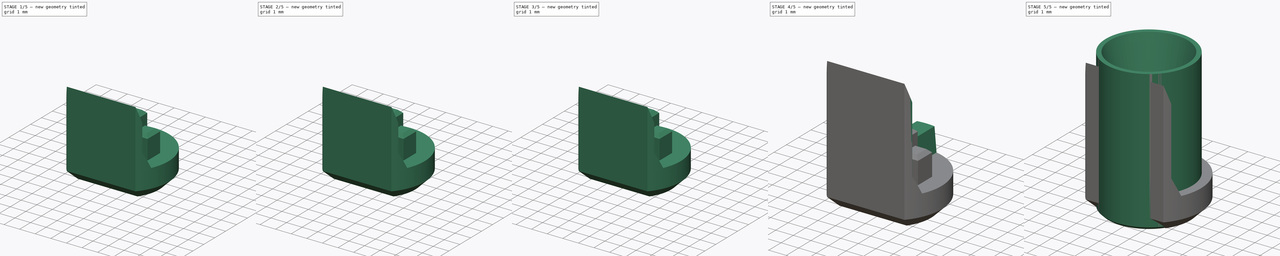
[diagram: build sequence overview — one tinted view per stage of 5, left to right]
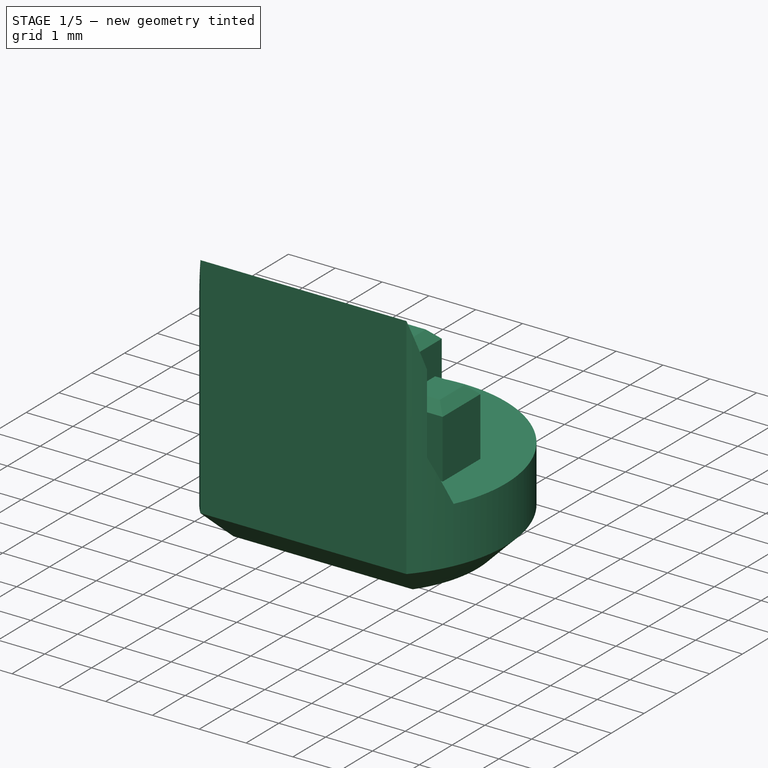
[diagram: stage 1 of 5 — iso view after this stage's code; geometry added in this stage tinted green]
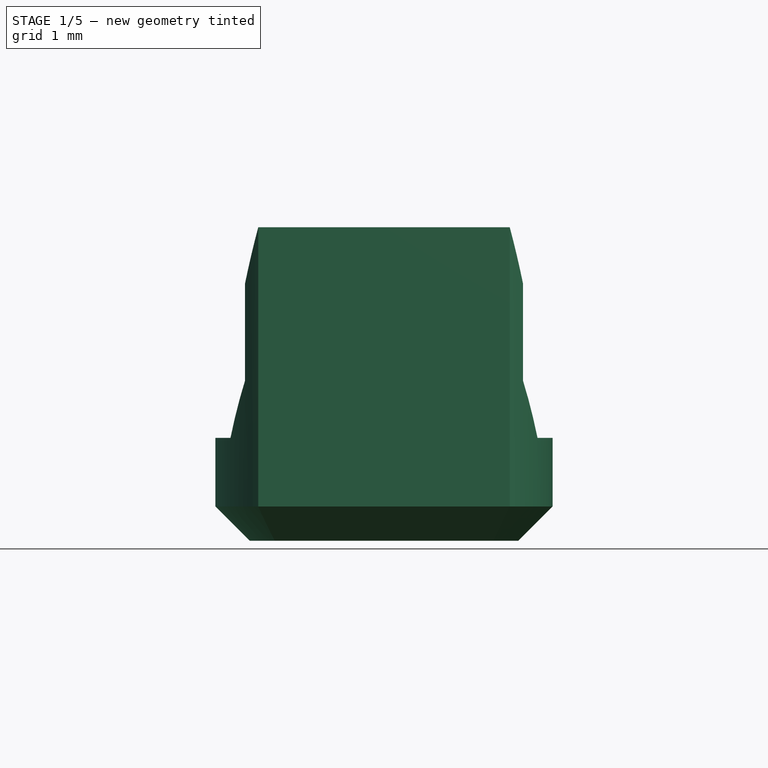
[diagram: stage 1 of 5 — front view after this stage's code; geometry added in this stage tinted green]
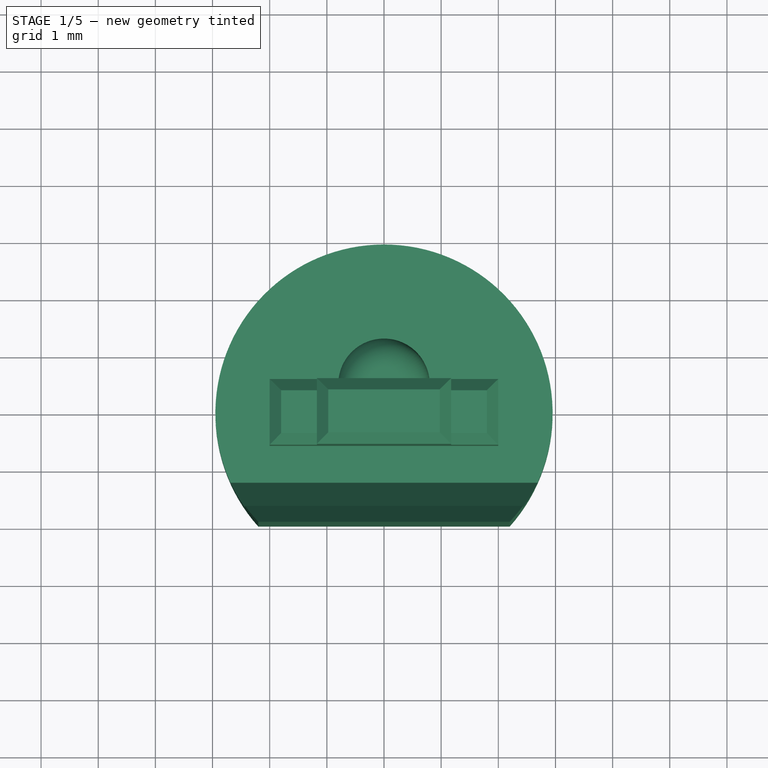
[diagram: stage 1 of 5 — top view after this stage's code; geometry added in this stage tinted green]
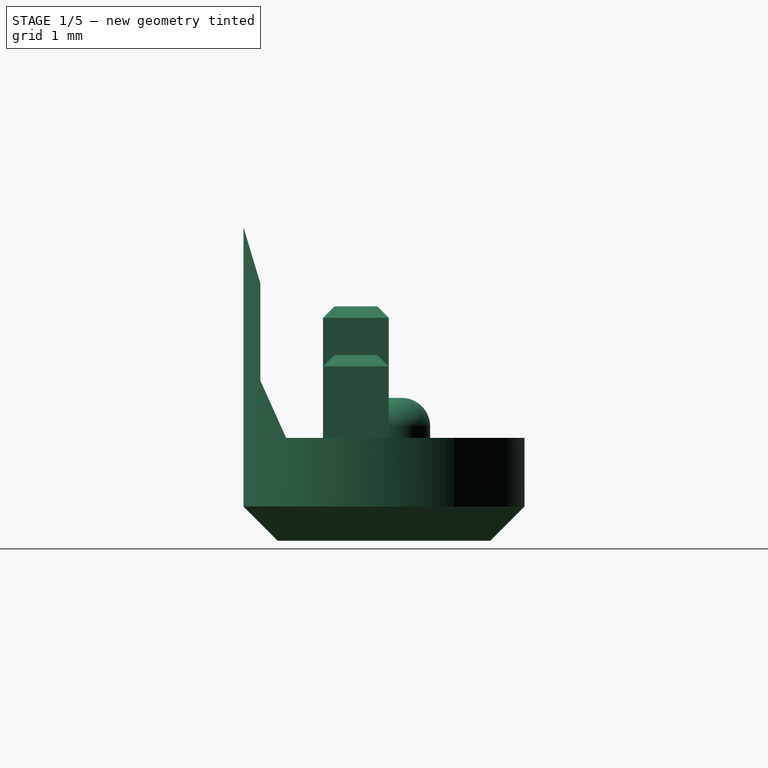
[diagram: stage 1 of 5 — right view after this stage's code; geometry added in this stage tinted green]
FCSTD DOCUMENT  (FreeCAD 0.21R33668 +26 (Git))
Label: universal_insert
License: All rights reserved
LicenseURL: http://en.wikipedia.org/wiki/All_rights_reserved
objects: PartDesign::Body×50, PartDesign::FeatureBase×45, Sketcher::SketchObject×12, PartDesign::Pad×6, PartDesign::Chamfer×5, PartDesign::Pocket×4, App::Part×3, PartDesign::Revolution×2, PartDesign::Draft×1, PartDesign::Fillet×1
note: 145 computed .brp shape members not serialized (recipe doc carries the construction recipe); baked Part::Feature solids carry a one-line shape summary decoded from their .brp

FEATURE [PartDesign::Body] Body  label="Potentiometer"
  Group = -> [Sketch,Pad,Sketch001,Sketch002,Pad001,Sketch003,Pocket,Pad002,Draft,Chamfer]
  Origin = -> Origin
  Tip = -> Chamfer
FEATURE [Sketcher::SketchObject] Sketch004
  FullyConstrained = true
  MapMode = 5
  Support = -> [XY_Plane001]
  sketch-geometry (2):
    g0: ArcOfCircle CenterX=0 CenterY=0 CenterZ=0 NormalX=0 NormalY=0 NormalZ=1 AngleXU=0 Radius=2.95 StartAngle=5.55407 EndAngle=10.1539
    g1: LineSegment StartX=-2.2 StartY=-1.96532 StartZ=0 EndX=2.2 EndY=-1.96532 EndZ=0
  constraints (6):
    c: Coincident(g0,g-1)
    c: Coincident(g1,g0)
    c: Coincident(g1,g0)
    c: Radius(g0) = 2.95
    c: DistanceX(g1,g1) = 4.4
    c: Horizontal(g1)
FEATURE [PartDesign::Pad] Pad003  label="Riser001"
  AllowMultiFace = false
  Direction = (0,0,1)
  Length = 5.5
  Length2 = 100
  Profile = -> Sketch004
  ReferenceAxis = -> Sketch004 [N_Axis]
  Refine = true
  Type = 0
FEATURE [Sketcher::SketchObject] Sketch008
  FullyConstrained = true
  MapMode = 5
  Support = -> [XY_Plane002]
  sketch-geometry (7):
    g0: LineSegment StartX=-2 StartY=0.575 StartZ=0 EndX=2 EndY=0.575 EndZ=0
    g1: LineSegment StartX=2 StartY=0.575 StartZ=0 EndX=2 EndY=-0.575 EndZ=0
    g2: LineSegment StartX=2 StartY=-0.575 StartZ=0 EndX=-2 EndY=-0.575 EndZ=0
    g3: LineSegment StartX=-2 StartY=-0.575 StartZ=0 EndX=-2 EndY=0.575 EndZ=0
    g4: LineSegment StartX=-2 StartY=0.575 StartZ=0 EndX=0 EndY=0 EndZ=0
    g5: LineSegment StartX=0 StartY=0 StartZ=0 EndX=2 EndY=0.575 EndZ=0
    g6: LineSegment StartX=0 StartY=0 StartZ=0 EndX=-2 EndY=-0.575 EndZ=0
  constraints (18):
    c: Coincident(g0,g1)
    c: Coincident(g1,g2)
    c: Coincident(g2,g3)
    c: Coincident(g3,g0)
    c: Horizontal(g0)
    c: Horizontal(g2)
    c: Vertical(g1)
    c: Vertical(g3)
    c: Coincident(g4,g0)
    c: Coincident(g4,g-1)
    c: Coincident(g5,g-1)
    c: Coincident(g5,g0)
    c: Coincident(g6,g-1)
    c: Coincident(g6,g2)
    c: Equal(g6,g4)
    c: Equal(g4,g5)
    c: DistanceX(g0,g0) = 4
    c: DistanceY(g1,g1) = 1.15
FEATURE [PartDesign::Pad] Pad005  label="Riser002"
  AllowMultiFace = false
  Direction = (1,1,1)
  Length = 4.1
  Length2 = 100
  Profile = -> Sketch008
  Refine = true
  Type = 0
FEATURE [Sketcher::SketchObject] Sketch009
  ExternalGeometry = -> [Pad005]
  FullyConstrained = true
  MapMode = 5
  Placement = pos=(0,0.575,0) rot=(0,0.707107,0.707107;3.14159rad)
  Support = -> [Pad005]
  sketch-geometry (8):
    g0: LineSegment StartX=-2 StartY=4.1 StartZ=0 EndX=-1.175 EndY=4.1 EndZ=0
    g1: LineSegment StartX=-1.175 StartY=4.1 StartZ=0 EndX=-1.175 EndY=3.25 EndZ=0
    g2: LineSegment StartX=-1.175 StartY=3.25 StartZ=0 EndX=-2 EndY=3.25 EndZ=0
    g3: LineSegment StartX=-2 StartY=3.25 StartZ=0 EndX=-2 EndY=4.1 EndZ=0
    g4: LineSegment StartX=2 StartY=4.1 StartZ=0 EndX=1.175 EndY=4.1 EndZ=0
    g5: LineSegment StartX=1.175 StartY=4.1 StartZ=0 EndX=1.175 EndY=3.25 EndZ=0
    g6: LineSegment StartX=1.175 StartY=3.25 StartZ=0 EndX=2 EndY=3.25 EndZ=0
    g7: LineSegment StartX=2 StartY=3.25 StartZ=0 EndX=2 EndY=4.1 EndZ=0
  constraints (22):
    c: Coincident(g0,g1)
    c: Coincident(g1,g2)
    c: Coincident(g2,g3)
    c: Coincident(g3,g0)
    c: Horizontal(g0)
    c: Horizontal(g2)
    c: Vertical(g1)
    c: Vertical(g3)
    c: Coincident(g0,g-4)
    c: Coincident(g4,g5)
    c: Coincident(g5,g6)
    c: Coincident(g6,g7)
    c: Coincident(g7,g4)
    c: Horizontal(g4)
    c: Horizontal(g6)
    c: Vertical(g5)
    c: Vertical(g7)
    c: Coincident(g4,g-5)
    c: Equal(g4,g0)
    c: Equal(g1,g5)
    c: DistanceX(g0,g4) = 2.35
    c: DistanceY(g1,g1) = 0.85
FEATURE [PartDesign::Pocket] Pocket002
  AllowMultiFace = false
  BaseFeature = -> Pad005
  Direction = (1,1,1)
  Length = 5
  Length2 = 100
  Profile = -> Sketch009
  Refine = true
  Type = 0
FEATURE [PartDesign::Body] Body019
  BaseFeature = -> Body017
  Group = -> [Clone014]
  Origin = -> Origin020
  Placement = pos=(0,90,0) rot=(0,0,1;0rad)
  Tip = -> Clone014
FEATURE [App::Part] Part  label="P"
  Group = -> [Body,Body005,Body006,Body007,Body008,Body009,Body010,Body011,Body012,Body013,Body014,Body015,Body016,Body017,Body018,Body019]
  Origin = -> Origin005
FEATURE [Sketcher::SketchObject] Sketch014
  FullyConstrained = true
  MapMode = 5
  Placement = pos=(0,0,0) rot=(0.57735,0.57735,0.57735;2.0944rad)
  Support = -> [YZ_Plane001]
  expr: Constraints[17] = 1.5 + 0.3
  sketch-geometry (6):
    g0: LineSegment StartX=-1.97 StartY=5.5 StartZ=0 EndX=-1.67 EndY=4.5 EndZ=0
    g1: LineSegment StartX=-1.67 StartY=4.5 StartZ=0 EndX=-1.67 EndY=2.8 EndZ=0
    g2: LineSegment StartX=-1.67 StartY=2.8 StartZ=0 EndX=-1.22 EndY=1.8 EndZ=0
    g3: LineSegment StartX=-1.22 StartY=1.8 StartZ=0 EndX=4 EndY=1.8 EndZ=0
    g4: LineSegment StartX=4 StartY=1.8 StartZ=0 EndX=4 EndY=5.5 EndZ=0
    g5: LineSegment StartX=4 StartY=5.5 StartZ=0 EndX=-1.97 EndY=5.5 EndZ=0
  constraints (18):
    c: Coincident(g0,g1)
    c: Vertical(g1)
    c: Coincident(g1,g2)
    c: Coincident(g2,g3)
    c: Horizontal(g3)
    c: Coincident(g3,g4)
    c: Vertical(g4)
    c: Coincident(g4,g5)
    c: Coincident(g5,g0)
    c: Horizontal(g5)
    c: DistanceX(g0,g-1) = 1.97
    c: DistanceY(g-1,g0) = 5.5
    c: DistanceX(g0,g0) = 0.3
    c: DistanceY(g0,g0) = 1
    c: DistanceY(g2,g2) = 1
    c: DistanceX(g2,g2) = 0.45
    c: DistanceX(g-1,g3) = 4
    c: DistanceY(g-1,g3) = 1.8
FEATURE [PartDesign::Pocket] Pocket004
  BaseFeature = -> Pad003
  Direction = (-1,2e-16,-3e-16)
  Length = 5
  Length2 = 100
  Midplane = true
  Profile = -> Sketch014
  Type = 1
FEATURE [Sketcher::SketchObject] Sketch013
  FullyConstrained = true
  MapMode = 5
  Placement = pos=(-5e-16,4e-16,1.8) rot=(0,0,1;0rad)
  Support = -> [Pocket004]
  sketch-geometry (1):
    g0: Circle CenterX=0 CenterY=0.5 CenterZ=0 NormalX=0 NormalY=0 NormalZ=1 AngleXU=0 Radius=0.8
  constraints (3):
    c: PointOnObject(g0,g-2)
    c: DistanceY(g-1,g0) = 0.5
    c: Diameter(g0) = 1.6
FEATURE [PartDesign::Pad] Pad006
  BaseFeature = -> Pocket004
  Direction = (-3e-16,2e-16,1)
  Length = 0.7
  Length2 = 100
  Profile = -> Sketch013
  Type = 0
FEATURE [PartDesign::Fillet] Fillet
  Base = -> Pad006 [Edge18]
  BaseFeature = -> Pad006
  Radius = 0.5
  SupportTransform = false
  UseAllEdges = false
FEATURE [PartDesign::Chamfer] Chamfer004
  Angle = 45
  Base = -> Fillet [Face7]
  BaseFeature = -> Fillet
  ChamferType = 0
  FlipDirection = false
  Size = 0.6
  Size2 = 1
  SupportTransform = false
  UseAllEdges = false
FEATURE [PartDesign::Body] Body034
  BaseFeature = -> Body001
  Group = -> [Clone029]
  Origin = -> Origin036
  Placement = pos=(0,90,0) rot=(0,0,1;0rad)
  Tip = -> Clone029
FEATURE [App::Part] Part002  label="E"
  Group = -> [Body001,Body020,Body021,Body022,Body023,Body024,Body025,Body026,Body027,Body028,Body029,Body030,Body031,Body032,Body033,Body034]
  Origin = -> Origin037
FEATURE [PartDesign::Chamfer] Chamfer005
  Angle = 45
  Base = -> Pocket002 [Edge5,Edge19,Edge3,Edge7,Edge23,Edge14,Edge13,Edge22,Edge17,Edge18]
  BaseFeature = -> Pocket002
  ChamferType = 0
  FlipDirection = false
  Size = 0.2
  Size2 = 1
  SupportTransform = false
  UseAllEdges = false
FEATURE [PartDesign::Body] Body044
  BaseFeature = -> Body002
  Group = -> [Clone039]
  Origin = -> Origin047
  Placement = pos=(0,60,0) rot=(0,0,1;0rad)
  Tip = -> Clone039
FEATURE [PartDesign::FeatureBase] Clone040
  BaseFeature = -> Body002
FEATURE [PartDesign::Body] Body045
  BaseFeature = -> Body002
  Group = -> [Clone040]
  Origin = -> Origin048
  Placement = pos=(0,66,0) rot=(0,0,1;0rad)
  Tip = -> Clone040
FEATURE [PartDesign::FeatureBase] Clone041
  BaseFeature = -> Body002
FEATURE [PartDesign::Body] Body046
  BaseFeature = -> Body002
  Group = -> [Clone041]
  Origin = -> Origin049
  Placement = pos=(0,72,0) rot=(0,0,1;0rad)
  Tip = -> Clone041
FEATURE [PartDesign::FeatureBase] Clone042
  BaseFeature = -> Body002
FEATURE [PartDesign::Body] Body047
  BaseFeature = -> Body002
  Group = -> [Clone042]
  Origin = -> Origin050
  Placement = pos=(0,78,0) rot=(0,0,1;0rad)
  Tip = -> Clone042
FEATURE [PartDesign::FeatureBase] Clone043
  BaseFeature = -> Body002
FEATURE [PartDesign::Body] Body048
  BaseFeature = -> Body002
  Group = -> [Clone043]
  Origin = -> Origin051
  Placement = pos=(0,84,0) rot=(0,0,1;0rad)
  Tip = -> Clone043
FEATURE [PartDesign::FeatureBase] Clone044
  BaseFeature = -> Body002
FEATURE [PartDesign::Body] Body049
  BaseFeature = -> Body002
  Group = -> [Clone044]
  Origin = -> Origin052
  Placement = pos=(0,90,0) rot=(0,0,1;0rad)
  Tip = -> Clone044
FEATURE [App::Part] Part001  label="F"
  Group = -> [Body002,Body035,Body036,Body037,Body038,Body039,Body040,Body041,Body042,Body043,Body044,Body045,Body046,Body047,Body048,Body049]
  Origin = -> Origin021
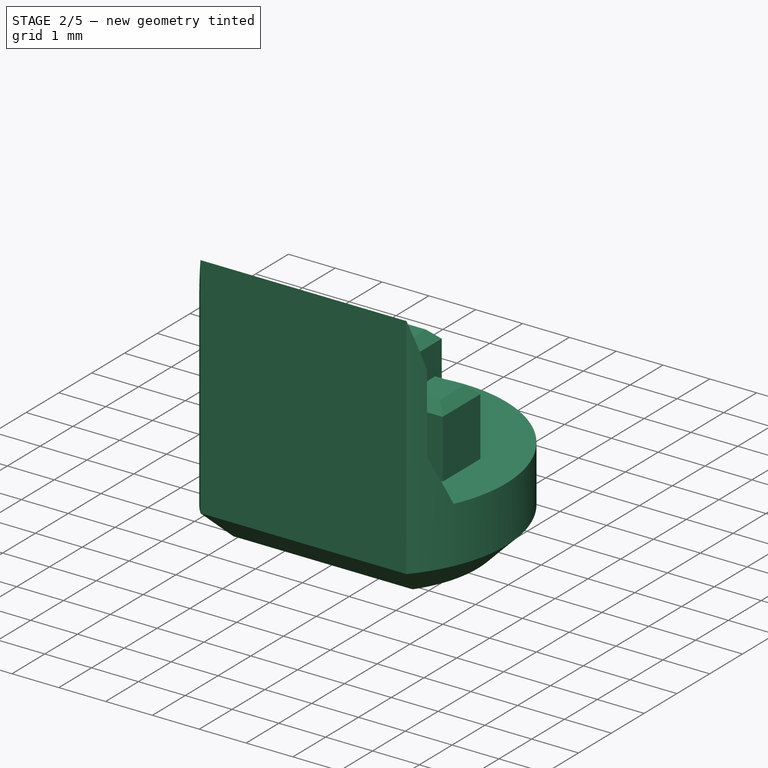
[diagram: stage 2 of 5 — iso view after this stage's code; geometry added in this stage tinted green]
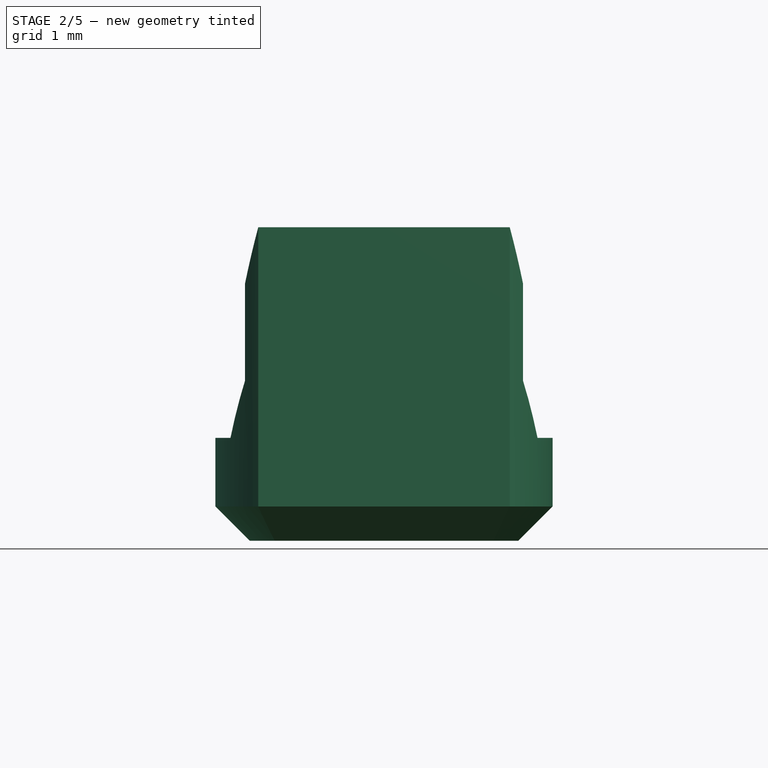
[diagram: stage 2 of 5 — front view after this stage's code; geometry added in this stage tinted green]
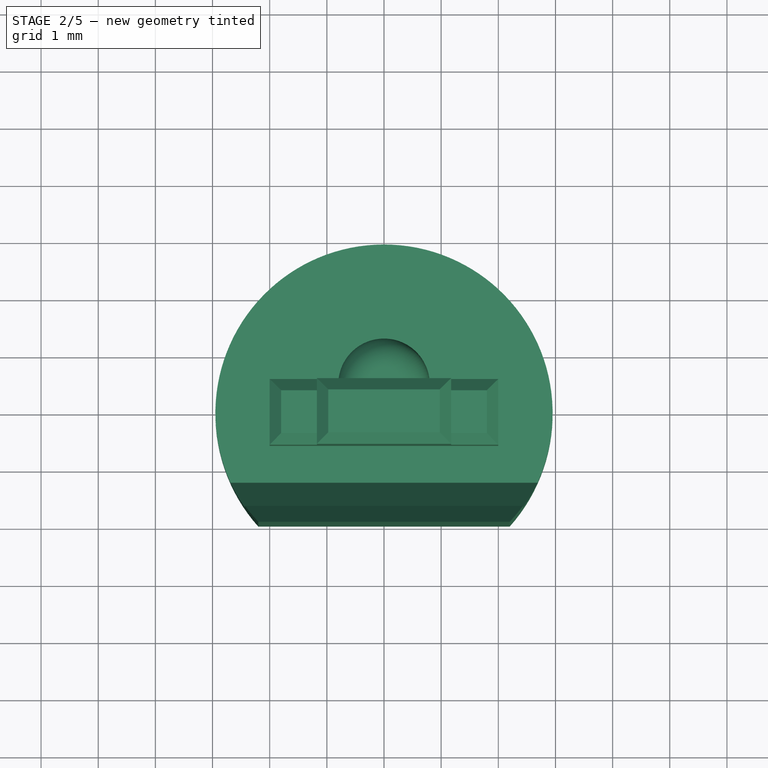
[diagram: stage 2 of 5 — top view after this stage's code; geometry added in this stage tinted green]
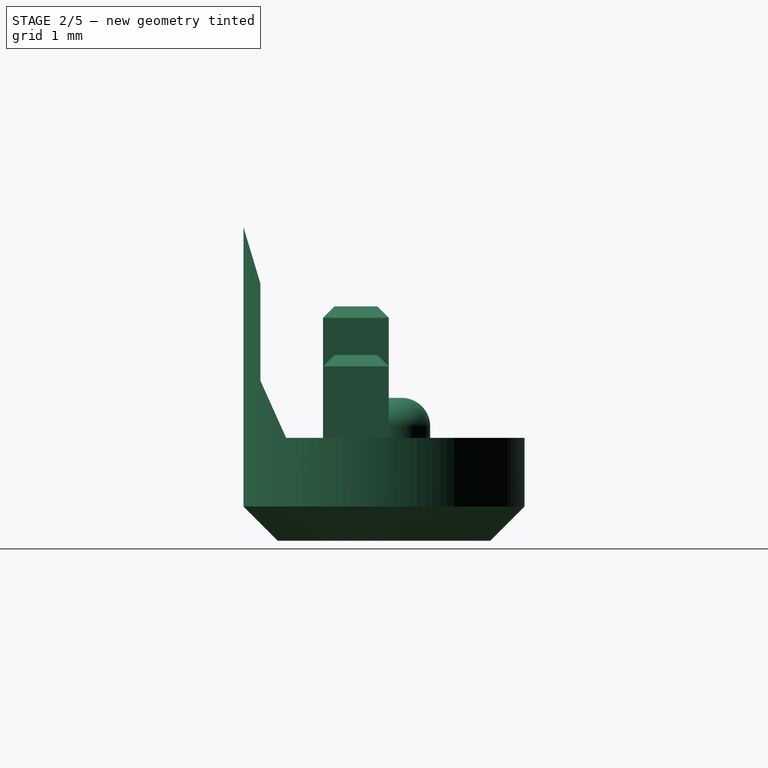
[diagram: stage 2 of 5 — right view after this stage's code; geometry added in this stage tinted green]
FEATURE [PartDesign::Body] Body031
  BaseFeature = -> Body001
  Group = -> [Clone026]
  Origin = -> Origin033
  Placement = pos=(0,72,0) rot=(0,0,1;0rad)
  Tip = -> Clone026
FEATURE [PartDesign::FeatureBase] Clone027
  BaseFeature = -> Body001
FEATURE [PartDesign::Body] Body032
  BaseFeature = -> Body001
  Group = -> [Clone027]
  Origin = -> Origin034
  Placement = pos=(0,78,0) rot=(0,0,1;0rad)
  Tip = -> Clone027
FEATURE [PartDesign::FeatureBase] Clone028
  BaseFeature = -> Body001
FEATURE [PartDesign::Body] Body033
  BaseFeature = -> Body001
  Group = -> [Clone028]
  Origin = -> Origin035
  Placement = pos=(0,84,0) rot=(0,0,1;0rad)
  Tip = -> Clone028
FEATURE [PartDesign::FeatureBase] Clone029
  BaseFeature = -> Body001
FEATURE [PartDesign::Body] Body002  label="Fader"
  Group = -> [Sketch008,Pad005,Sketch009,Pocket002,Chamfer005]
  Origin = -> Origin002
  Tip = -> Chamfer005
FEATURE [PartDesign::FeatureBase] Clone030
  BaseFeature = -> Body002
FEATURE [PartDesign::Body] Body035
  BaseFeature = -> Body002
  Group = -> [Clone030]
  Origin = -> Origin038
  Placement = pos=(0,6,0) rot=(0,0,1;0rad)
  Tip = -> Clone030
FEATURE [PartDesign::FeatureBase] Clone031
  BaseFeature = -> Body002
FEATURE [PartDesign::Body] Body036
  BaseFeature = -> Body002
  Group = -> [Clone031]
  Origin = -> Origin039
  Placement = pos=(0,12,0) rot=(0,0,1;0rad)
  Tip = -> Clone031
FEATURE [PartDesign::FeatureBase] Clone032
  BaseFeature = -> Body002
FEATURE [PartDesign::Body] Body037
  BaseFeature = -> Body002
  Group = -> [Clone032]
  Origin = -> Origin040
  Placement = pos=(0,18,0) rot=(0,0,1;0rad)
  Tip = -> Clone032
FEATURE [PartDesign::FeatureBase] Clone033
  BaseFeature = -> Body002
FEATURE [PartDesign::Body] Body038
  BaseFeature = -> Body002
  Group = -> [Clone033]
  Origin = -> Origin041
  Placement = pos=(0,24,0) rot=(0,0,1;0rad)
  Tip = -> Clone033
FEATURE [PartDesign::FeatureBase] Clone034
  BaseFeature = -> Body002
FEATURE [PartDesign::Body] Body039
  BaseFeature = -> Body002
  Group = -> [Clone034]
  Origin = -> Origin042
  Placement = pos=(0,30,0) rot=(0,0,1;0rad)
  Tip = -> Clone034
FEATURE [PartDesign::FeatureBase] Clone035
  BaseFeature = -> Body002
FEATURE [PartDesign::Body] Body040
  BaseFeature = -> Body002
  Group = -> [Clone035]
  Origin = -> Origin043
  Placement = pos=(0,36,0) rot=(0,0,1;0rad)
  Tip = -> Clone035
FEATURE [PartDesign::FeatureBase] Clone036
  BaseFeature = -> Body002
FEATURE [PartDesign::Body] Body041
  BaseFeature = -> Body002
  Group = -> [Clone036]
  Origin = -> Origin044
  Placement = pos=(0,42,0) rot=(0,0,1;0rad)
  Tip = -> Clone036
FEATURE [PartDesign::FeatureBase] Clone037
  BaseFeature = -> Body002
FEATURE [PartDesign::Body] Body042
  BaseFeature = -> Body002
  Group = -> [Clone037]
  Origin = -> Origin045
  Placement = pos=(0,48,0) rot=(0,0,1;0rad)
  Tip = -> Clone037
FEATURE [PartDesign::FeatureBase] Clone038
  BaseFeature = -> Body002
FEATURE [PartDesign::Body] Body043
  BaseFeature = -> Body002
  Group = -> [Clone038]
  Origin = -> Origin046
  Placement = pos=(0,54,0) rot=(0,0,1;0rad)
  Tip = -> Clone038
FEATURE [PartDesign::FeatureBase] Clone039
  BaseFeature = -> Body002
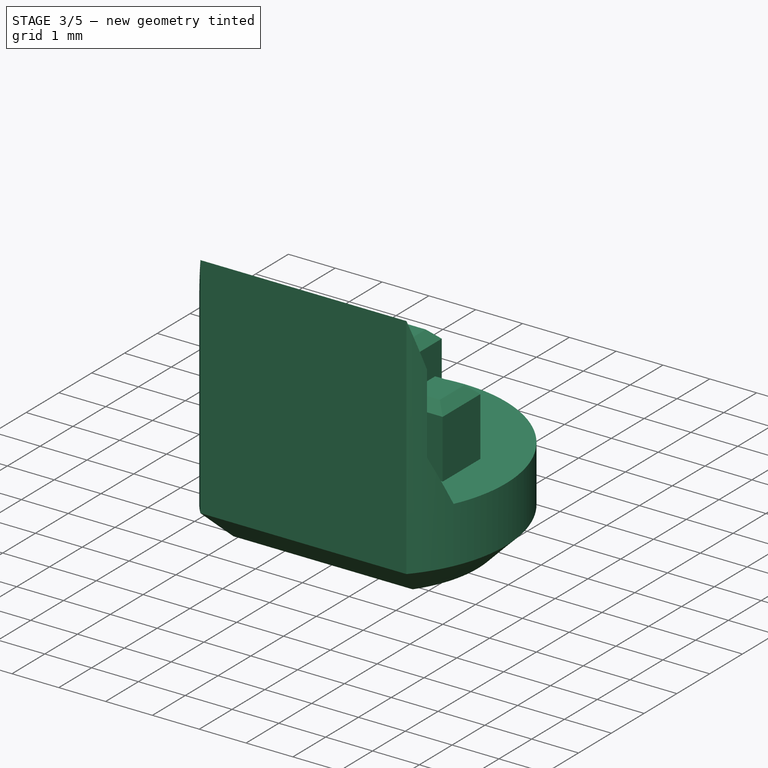
[diagram: stage 3 of 5 — iso view after this stage's code; geometry added in this stage tinted green]
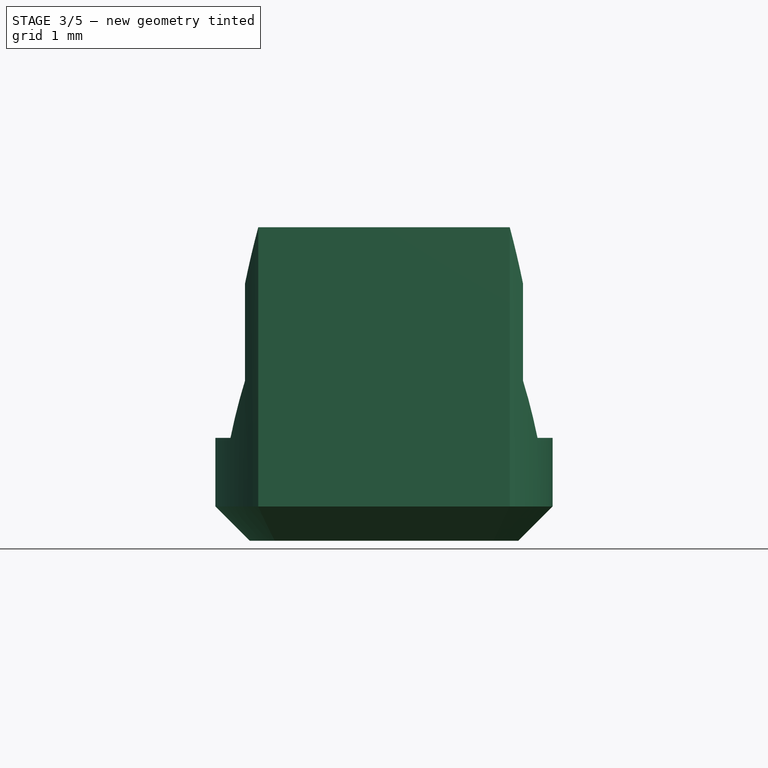
[diagram: stage 3 of 5 — front view after this stage's code; geometry added in this stage tinted green]
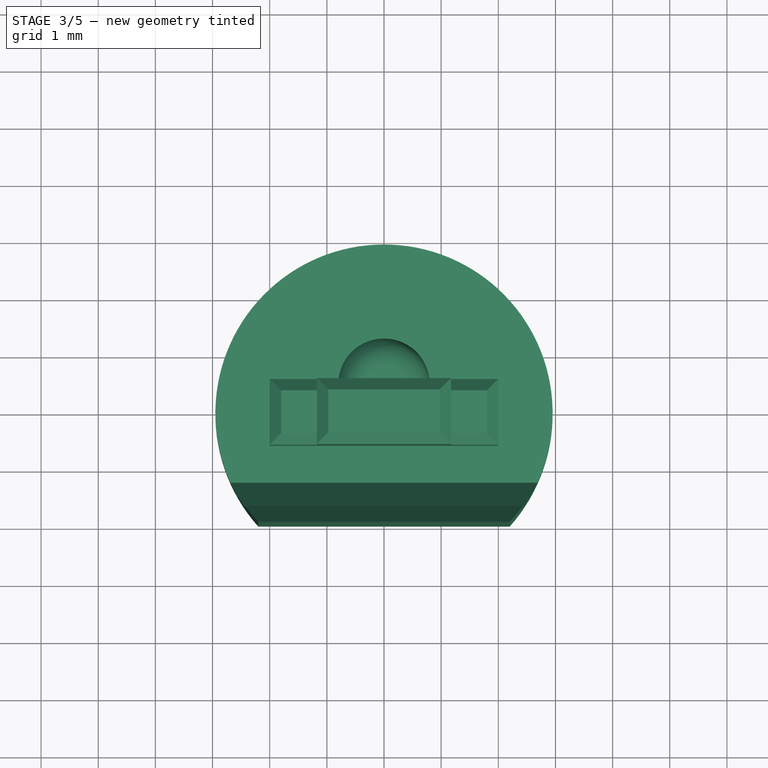
[diagram: stage 3 of 5 — top view after this stage's code; geometry added in this stage tinted green]
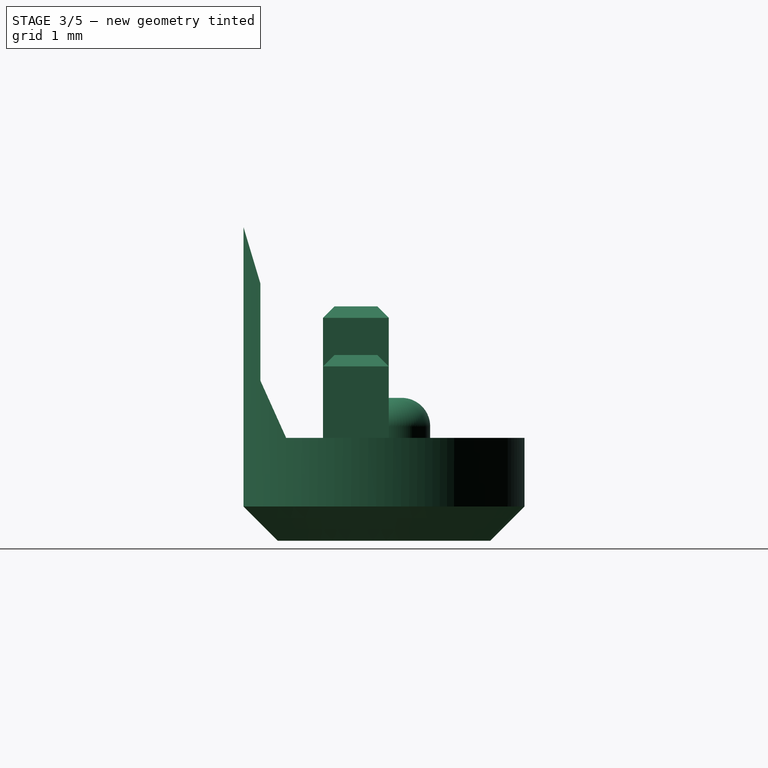
[diagram: stage 3 of 5 — right view after this stage's code; geometry added in this stage tinted green]
FEATURE [PartDesign::Body] Body001  label="Encoder"
  Group = -> [Sketch004,Pad003,Sketch013,Sketch014,Pocket004,Pad006,Fillet,Chamfer004]
  Origin = -> Origin001
  Tip = -> Chamfer004
FEATURE [PartDesign::FeatureBase] Clone015
  BaseFeature = -> Body001
FEATURE [PartDesign::Body] Body020
  BaseFeature = -> Body001
  Group = -> [Clone015]
  Origin = -> Origin022
  Placement = pos=(0,6,0) rot=(0,0,1;0rad)
  Tip = -> Clone015
FEATURE [PartDesign::FeatureBase] Clone016
  BaseFeature = -> Body001
FEATURE [PartDesign::Body] Body021
  BaseFeature = -> Body001
  Group = -> [Clone016]
  Origin = -> Origin023
  Placement = pos=(0,12,0) rot=(0,0,1;0rad)
  Tip = -> Clone016
FEATURE [PartDesign::FeatureBase] Clone017
  BaseFeature = -> Body001
FEATURE [PartDesign::Body] Body022
  BaseFeature = -> Body001
  Group = -> [Clone017]
  Origin = -> Origin024
  Placement = pos=(0,18,0) rot=(0,0,1;0rad)
  Tip = -> Clone017
FEATURE [PartDesign::FeatureBase] Clone018
  BaseFeature = -> Body001
FEATURE [PartDesign::Body] Body023
  BaseFeature = -> Body001
  Group = -> [Clone018]
  Origin = -> Origin025
  Placement = pos=(0,24,0) rot=(0,0,1;0rad)
  Tip = -> Clone018
FEATURE [PartDesign::FeatureBase] Clone019
  BaseFeature = -> Body001
FEATURE [PartDesign::Body] Body024
  BaseFeature = -> Body001
  Group = -> [Clone019]
  Origin = -> Origin026
  Placement = pos=(0,30,0) rot=(0,0,1;0rad)
  Tip = -> Clone019
FEATURE [PartDesign::FeatureBase] Clone020
  BaseFeature = -> Body001
FEATURE [PartDesign::Body] Body025
  BaseFeature = -> Body001
  Group = -> [Clone020]
  Origin = -> Origin027
  Placement = pos=(0,36,0) rot=(0,0,1;0rad)
  Tip = -> Clone020
FEATURE [PartDesign::FeatureBase] Clone021
  BaseFeature = -> Body001
FEATURE [PartDesign::Body] Body026
  BaseFeature = -> Body001
  Group = -> [Clone021]
  Origin = -> Origin028
  Placement = pos=(0,42,0) rot=(0,0,1;0rad)
  Tip = -> Clone021
FEATURE [PartDesign::FeatureBase] Clone022
  BaseFeature = -> Body001
FEATURE [PartDesign::Body] Body027
  BaseFeature = -> Body001
  Group = -> [Clone022]
  Origin = -> Origin029
  Placement = pos=(0,48,0) rot=(0,0,1;0rad)
  Tip = -> Clone022
FEATURE [PartDesign::FeatureBase] Clone023
  BaseFeature = -> Body001
FEATURE [PartDesign::Body] Body028
  BaseFeature = -> Body001
  Group = -> [Clone023]
  Origin = -> Origin030
  Placement = pos=(0,54,0) rot=(0,0,1;0rad)
  Tip = -> Clone023
FEATURE [PartDesign::FeatureBase] Clone024
  BaseFeature = -> Body001
FEATURE [PartDesign::Body] Body029
  BaseFeature = -> Body001
  Group = -> [Clone024]
  Origin = -> Origin031
  Placement = pos=(0,60,0) rot=(0,0,1;0rad)
  Tip = -> Clone024
FEATURE [PartDesign::FeatureBase] Clone025
  BaseFeature = -> Body001
FEATURE [PartDesign::Body] Body030
  BaseFeature = -> Body001
  Group = -> [Clone025]
  Origin = -> Origin032
  Placement = pos=(0,66,0) rot=(0,0,1;0rad)
  Tip = -> Clone025
FEATURE [PartDesign::FeatureBase] Clone026
  BaseFeature = -> Body001
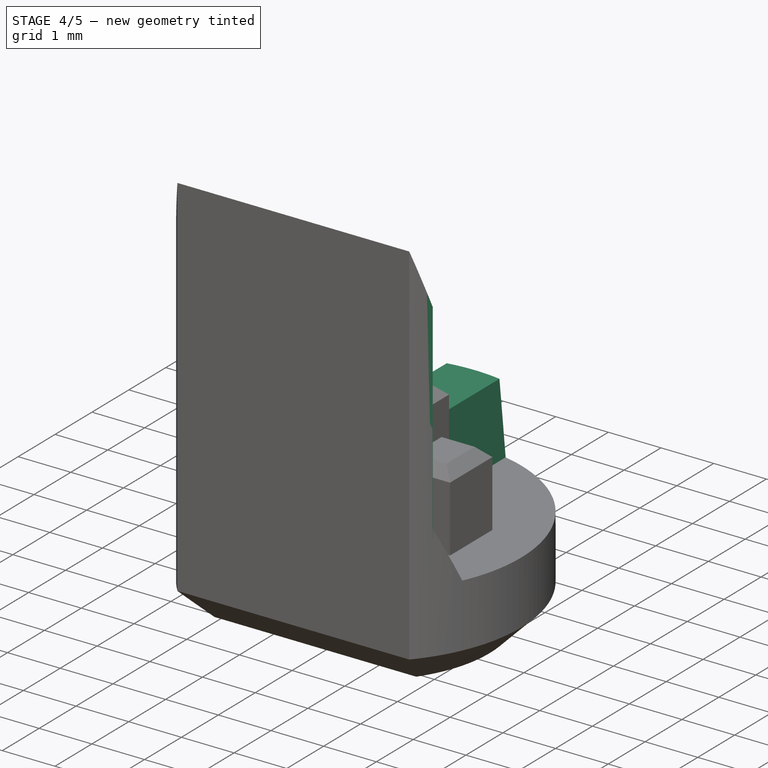
[diagram: stage 4 of 5 — iso view after this stage's code; geometry added in this stage tinted green]
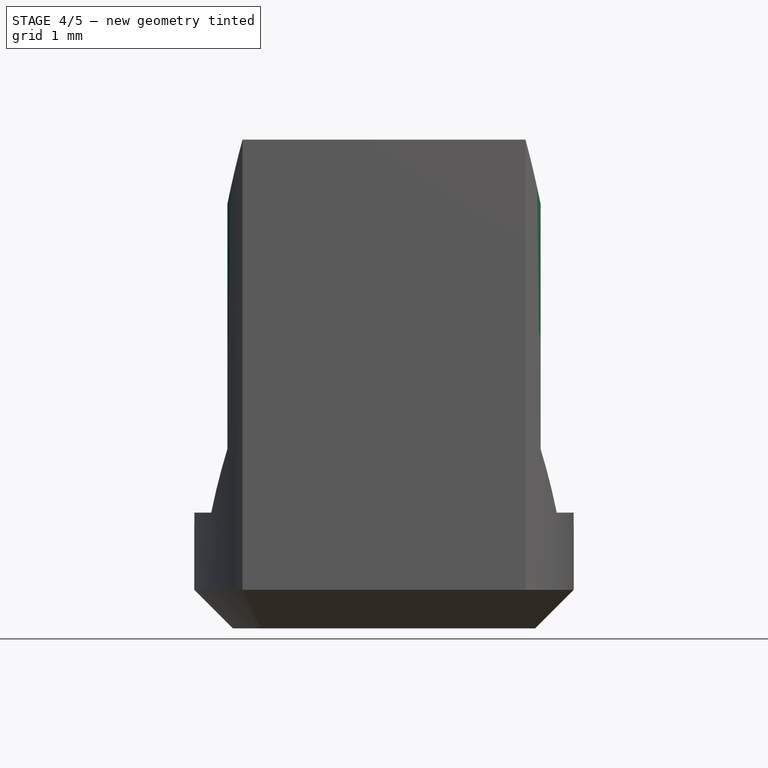
[diagram: stage 4 of 5 — front view after this stage's code; geometry added in this stage tinted green]
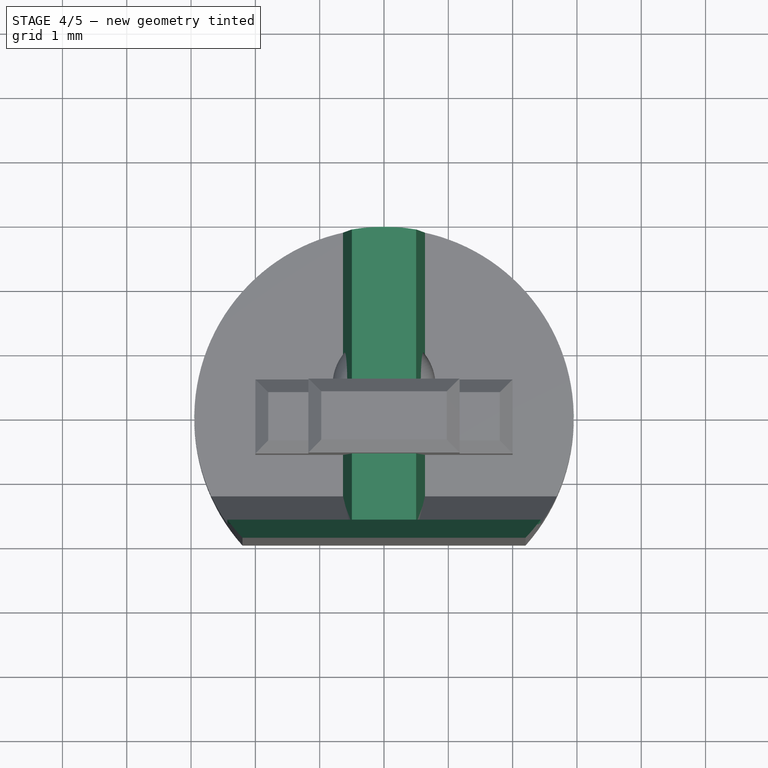
[diagram: stage 4 of 5 — top view after this stage's code; geometry added in this stage tinted green]
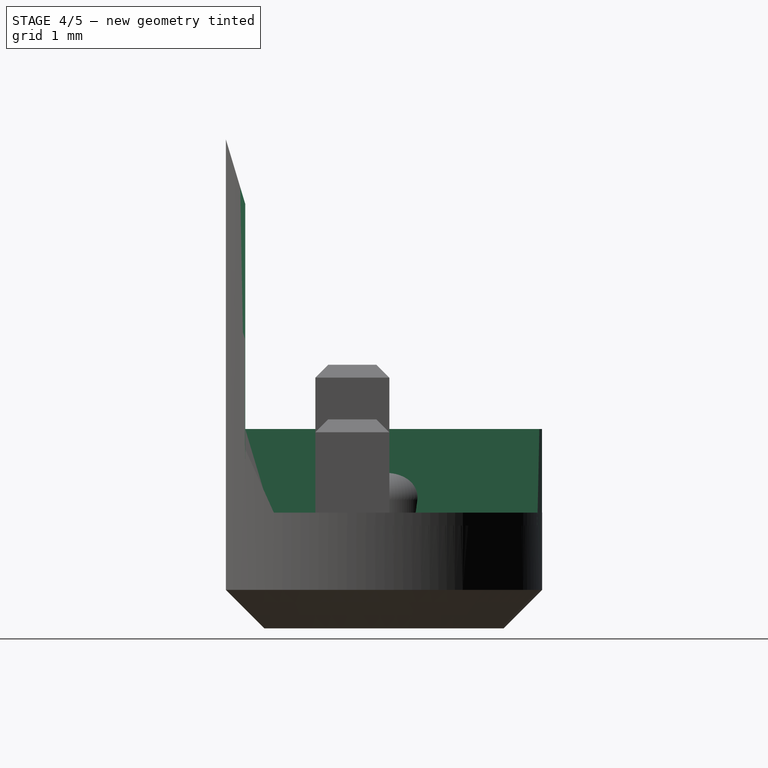
[diagram: stage 4 of 5 — right view after this stage's code; geometry added in this stage tinted green]
FEATURE [Sketcher::SketchObject] Sketch
  FullyConstrained = false
  MapMode = 5
  Support = -> [XY_Plane]
  sketch-geometry (2):
    g0: ArcOfCircle CenterX=0 CenterY=0 CenterZ=0 NormalX=0 NormalY=0 NormalZ=1 AngleXU=0 Radius=2.95 StartAngle=5.55407 EndAngle=10.1539
    g1: LineSegment StartX=-2.2 StartY=-1.96532 StartZ=0 EndX=2.2 EndY=-1.96532 EndZ=0
  constraints (6):
    c: Coincident(g0,g-1)
    c: Coincident(g1,g0)
    c: Coincident(g1,g0)
    c: Radius(g0) = 2.95
    c: DistanceX(g1,g1) = 4.4
    c: Horizontal(g1)
FEATURE [PartDesign::Pad] Pad  label="Riser"
  AllowMultiFace = false
  Direction = (1,1,1)
  Length = 1.6
  Length2 = 100
  Profile = -> Sketch
  Refine = true
  Type = 0
FEATURE [Sketcher::SketchObject] Sketch001
  ExternalGeometry = -> [Pad]
  FullyConstrained = true
  MapMode = 5
  Placement = pos=(0,0,1.6) rot=(0,0,1;0rad)
  Support = -> [Pad]
  sketch-geometry (4):
    g0: LineSegment StartX=-0.5 StartY=-1.96532 StartZ=0 EndX=-0.5 EndY=2.90732 EndZ=0
    g1: LineSegment StartX=0.5 StartY=2.90732 StartZ=0 EndX=0.5 EndY=-1.96532 EndZ=0
    g2: ArcOfCircle CenterX=0 CenterY=0 CenterZ=0 NormalX=0 NormalY=0 NormalZ=1 AngleXU=0 Radius=2.95 StartAngle=1.40048 EndAngle=1.74111
    g3: LineSegment StartX=-0.5 StartY=-1.96532 StartZ=0 EndX=0.5 EndY=-1.96532 EndZ=0
  constraints (12):
    c: PointOnObject(g0,g-4)
    c: PointOnObject(g0,g-3)
    c: Vertical(g0)
    c: PointOnObject(g1,g-4)
    c: Vertical(g1)
    c: Coincident(g2,g-1)
    c: Coincident(g2,g0)
    c: Coincident(g2,g1)
    c: Equal(g1,g0)
    c: Coincident(g3,g0)
    c: Coincident(g3,g1)
    c: DistanceX(g3,g3) = 1
FEATURE [Sketcher::SketchObject] Sketch002
  ExternalGeometry = -> [Pad]
  FullyConstrained = false
  MapMode = 5
  Placement = pos=(0,0,1.6) rot=(0,0,1;0rad)
  Support = -> [Pad]
  sketch-geometry (4):
    g0: LineSegment StartX=-2.2 StartY=-1.96532 StartZ=0 EndX=2.2 EndY=-1.96532 EndZ=0
    g1: LineSegment StartX=-2.68803 StartY=-1.21532 StartZ=0 EndX=2.68803 EndY=-1.21532 EndZ=0
    g2: ArcOfCircle CenterX=0 CenterY=0 CenterZ=0 NormalX=0 NormalY=0 NormalZ=1 AngleXU=0 Radius=2.95 StartAngle=3.56621 EndAngle=3.87071
    g3: ArcOfCircle CenterX=0 CenterY=0 CenterZ=0 NormalX=0 NormalY=0 NormalZ=1 AngleXU=0 Radius=2.95 StartAngle=5.55407 EndAngle=5.85857
  constraints (10):
    c: Horizontal(g1)
    c: Coincident(g2,g-1)
    c: Coincident(g2,g0)
    c: Coincident(g2,g1)
    c: Coincident(g3,g2)
    c: Coincident(g3,g1)
    c: Coincident(g3,g0)
    c: DistanceY(g0,g1) = 0.75
    c: Coincident(g0,g-3)
    c: Coincident(g0,g-3)
FEATURE [PartDesign::Pad] Pad001
  AllowMultiFace = false
  BaseFeature = -> Pad
  Direction = (1,1,1)
  Length = 6
  Length2 = 100
  Profile = -> Sketch002
  Refine = true
  Type = 0
FEATURE [Sketcher::SketchObject] Sketch003
  ExternalGeometry = -> [Pad001]
  FullyConstrained = true
  MapMode = 5
  Placement = pos=(0,0,0) rot=(0.57735,0.57735,0.57735;2.0944rad)
  Support = -> [YZ_Plane]
  sketch-geometry (5):
    g0: LineSegment StartX=-1.21532 StartY=1.6 StartZ=0 EndX=-1.21532 EndY=7.6 EndZ=0
    g1: LineSegment StartX=-1.21532 StartY=1.6 StartZ=0 EndX=-1.66532 EndY=2.6 EndZ=0
    g2: LineSegment StartX=-1.96532 StartY=7.6 StartZ=0 EndX=-1.21532 EndY=7.6 EndZ=0
    g3: LineSegment StartX=-1.66532 StartY=2.6 StartZ=0 EndX=-1.66532 EndY=6.6 EndZ=0
    g4: LineSegment StartX=-1.66532 StartY=6.6 StartZ=0 EndX=-1.96532 EndY=7.6 EndZ=0
  constraints (13):
    c: Coincident(g0,g-3)
    c: Coincident(g0,g-3)
    c: Coincident(g1,g0)
    c: Horizontal(g2)
    c: Coincident(g2,g0)
    c: DistanceY(g0,g1) = 1
    c: Coincident(g3,g1)
    c: Vertical(g3)
    c: Coincident(g4,g3)
    c: Coincident(g4,g2)
    c: DistanceX(g2,g2) = 0.75
    c: DistanceY(g3,g0) = 1
    c: DistanceX(g2,g3) = 0.3
FEATURE [PartDesign::Pocket] Pocket
  AllowMultiFace = false
  BaseFeature = -> Pad001
  Direction = (1,1,1)
  Length = 5
  Length2 = 100
  Midplane = true
  Profile = -> Sketch003
  Refine = true
  Type = 1
FEATURE [PartDesign::Pad] Pad002
  AllowMultiFace = false
  BaseFeature = -> Pocket
  Direction = (1,1,1)
  Length = 1.5
  Length2 = 100
  Profile = -> Sketch001
  Refine = true
  Type = 0
FEATURE [PartDesign::Draft] Draft
  Angle = 6
  Base = -> Pad002 [Face9,Face11]
  BaseFeature = -> Pad002
  NeutralPlane = -> Pad002 [Face10]
  Reversed = true
  SupportTransform = false
FEATURE [PartDesign::Chamfer] Chamfer
  Angle = 45
  Base = -> Draft [Edge1,Edge2]
  BaseFeature = -> Draft
  ChamferType = 0
  FlipDirection = false
  Size = 0.6
  Size2 = 1
  SupportTransform = false
  UseAllEdges = false
FEATURE [PartDesign::Body] Body012
  BaseFeature = -> Body
  Group = -> [Clone007]
  Origin = -> Origin013
  Placement = pos=(0,48,0) rot=(0,0,1;0rad)
  Tip = -> Clone007
FEATURE [PartDesign::FeatureBase] Clone008
  BaseFeature = -> Body
FEATURE [PartDesign::Body] Body013
  BaseFeature = -> Body
  Group = -> [Clone008]
  Origin = -> Origin014
  Placement = pos=(0,54,0) rot=(0,0,1;0rad)
  Tip = -> Clone008
FEATURE [PartDesign::FeatureBase] Clone009
  BaseFeature = -> Body
FEATURE [PartDesign::Body] Body014
  BaseFeature = -> Body
  Group = -> [Clone009]
  Origin = -> Origin015
  Placement = pos=(0,60,0) rot=(0,0,1;0rad)
  Tip = -> Clone009
FEATURE [PartDesign::FeatureBase] Clone010
  BaseFeature = -> Body
FEATURE [PartDesign::Body] Body015
  BaseFeature = -> Body
  Group = -> [Clone010]
  Origin = -> Origin016
  Placement = pos=(0,66,0) rot=(0,0,1;0rad)
  Tip = -> Clone010
FEATURE [PartDesign::FeatureBase] Clone011
  BaseFeature = -> Body
FEATURE [PartDesign::Body] Body016
  BaseFeature = -> Body
  Group = -> [Clone011]
  Origin = -> Origin017
  Placement = pos=(0,72,0) rot=(0,0,1;0rad)
  Tip = -> Clone011
FEATURE [PartDesign::FeatureBase] Clone012
  BaseFeature = -> Body
FEATURE [PartDesign::Body] Body017
  BaseFeature = -> Body
  Group = -> [Clone012]
  Origin = -> Origin018
  Placement = pos=(0,78,0) rot=(0,0,1;0rad)
  Tip = -> Clone012
FEATURE [PartDesign::FeatureBase] Clone013
  BaseFeature = -> Body017
FEATURE [PartDesign::Body] Body018
  BaseFeature = -> Body017
  Group = -> [Clone013]
  Origin = -> Origin019
  Placement = pos=(0,84,0) rot=(0,0,1;0rad)
  Tip = -> Clone013
FEATURE [PartDesign::FeatureBase] Clone014
  BaseFeature = -> Body017
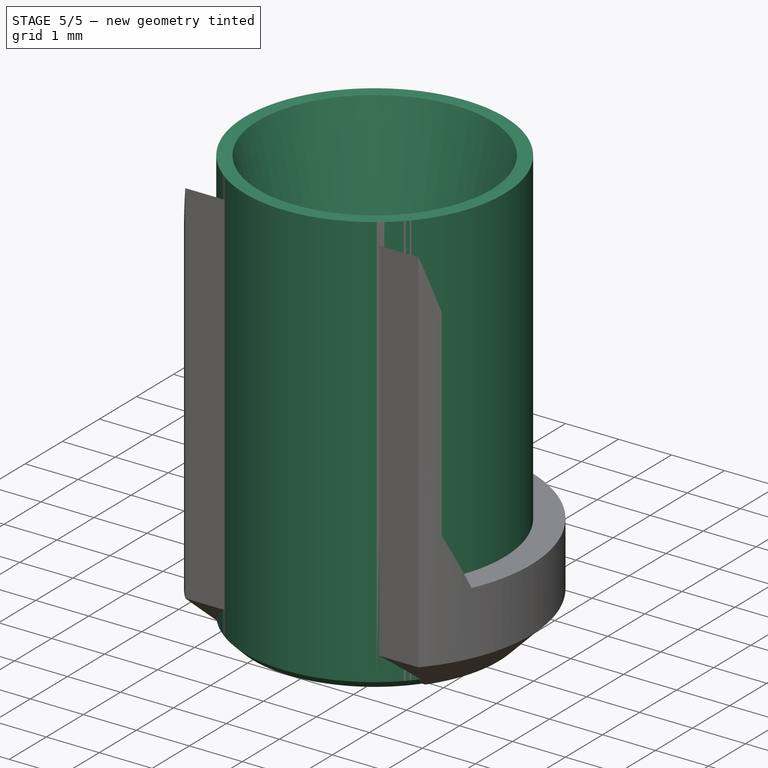
[diagram: stage 5 of 5 — iso view after this stage's code; geometry added in this stage tinted green]
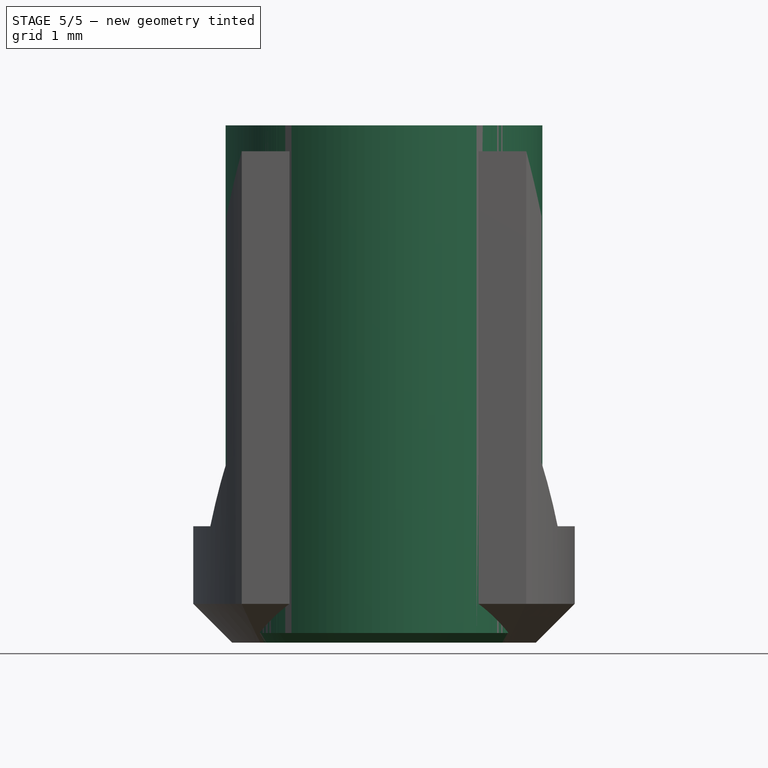
[diagram: stage 5 of 5 — front view after this stage's code; geometry added in this stage tinted green]
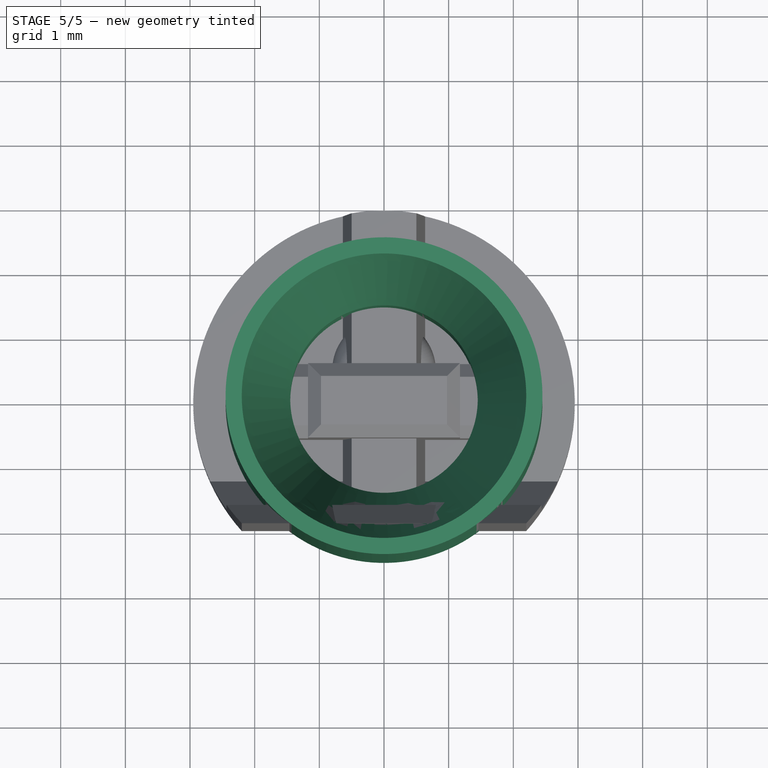
[diagram: stage 5 of 5 — top view after this stage's code; geometry added in this stage tinted green]
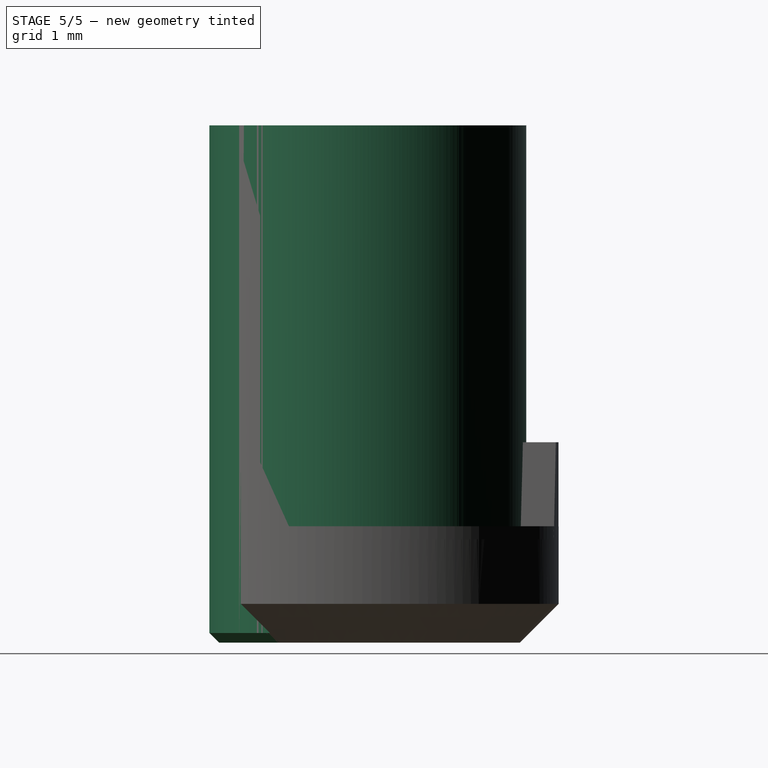
[diagram: stage 5 of 5 — right view after this stage's code; geometry added in this stage tinted green]
FEATURE [Sketcher::SketchObject] Sketch010
  FullyConstrained = false
  MapMode = 5
  Placement = pos=(0,0,0) rot=(1,0,0;1.5708rad)
  Support = -> [XZ_Plane003]
  sketch-geometry (5):
    g0: LineSegment StartX=-1.45 StartY=0 StartZ=0 EndX=-1.45 EndY=5 EndZ=0
    g1: LineSegment StartX=-1.45 StartY=0 StartZ=0 EndX=-2.45 EndY=0 EndZ=0
    g2: LineSegment StartX=-2.45 StartY=0 StartZ=0 EndX=-2.45 EndY=8 EndZ=0
    g3: LineSegment StartX=-1.45 StartY=5 StartZ=0 EndX=-2.2 EndY=8 EndZ=0
    g4: LineSegment StartX=-2.45 StartY=8 StartZ=0 EndX=-2.2 EndY=8 EndZ=0
  constraints (15):
    c: PointOnObject(g0,g-1)
    c: Coincident(g1,g0)
    c: Horizontal(g1)
    c: Coincident(g2,g1)
    c: Vertical(g2)
    c: DistanceX(g0,g-1) = 1.45
    c: Vertical(g0)
    c: Coincident(g3,g0)
    c: DistanceX(g1,g1) = 1
    c: Coincident(g4,g2)
    c: Coincident(g4,g3)
    c: Horizontal(g4)
    c: DistanceX(g4,g4) = 0.25
    c: DistanceY(g2,g2) = 8
    c: DistanceY(g0,g0) = 5
FEATURE [PartDesign::Revolution] Revolution
  AllowMultiFace = false
  Angle = 360
  Axis = (0,-2e-16,1)
  Base = (0,0,0)
  Placement = pos=(0,0,0) rot=(1,0,0;1.5708rad)
  Profile = -> Sketch010
  ReferenceAxis = -> Sketch010 [V_Axis]
  Refine = true
FEATURE [Sketcher::SketchObject] Sketch011
  FullyConstrained = false
  MapMode = 5
  Placement = pos=(0,0,0) rot=(1,0,0;1.5708rad)
  Support = -> [XZ_Plane004]
  sketch-geometry (5):
    g0: LineSegment StartX=-1.45 StartY=0 StartZ=0 EndX=-1.45 EndY=5 EndZ=0
    g1: LineSegment StartX=-1.45 StartY=0 StartZ=0 EndX=-2.45 EndY=0 EndZ=0
    g2: LineSegment StartX=-2.45 StartY=0 StartZ=0 EndX=-2.45 EndY=8 EndZ=0
    g3: LineSegment StartX=-1.45 StartY=5 StartZ=0 EndX=-2.2 EndY=8 EndZ=0
    g4: LineSegment StartX=-2.45 StartY=8 StartZ=0 EndX=-2.2 EndY=8 EndZ=0
  constraints (15):
    c: PointOnObject(g0,g-1)
    c: Coincident(g1,g0)
    c: Horizontal(g1)
    c: Coincident(g2,g1)
    c: Vertical(g2)
    c: DistanceX(g0,g-1) = 1.45
    c: Vertical(g0)
    c: Coincident(g3,g0)
    c: DistanceX(g1,g1) = 1
    c: Coincident(g4,g2)
    c: Coincident(g4,g3)
    c: Horizontal(g4)
    c: DistanceX(g4,g4) = 0.25
    c: DistanceY(g2,g2) = 8
    c: DistanceY(g0,g0) = 5
FEATURE [PartDesign::Revolution] Revolution001
  AllowMultiFace = false
  Angle = 360
  Axis = (0,-2e-16,1)
  Base = (0,0,0)
  Placement = pos=(0,0,0) rot=(1,0,0;1.5708rad)
  Profile = -> Sketch011
  ReferenceAxis = -> Sketch011 [V_Axis]
  Refine = true
FEATURE [Sketcher::SketchObject] Sketch012
  FullyConstrained = false
  MapMode = 5
  Placement = pos=(0,0,0) rot=(1,0,0;3.14159rad)
  Support = -> [Revolution001]
  sketch-geometry (4):
    g0: LineSegment StartX=-2.03437 StartY=2.61565 StartZ=0 EndX=2.45071 EndY=2.61565 EndZ=0
    g1: LineSegment StartX=2.45071 StartY=2.61565 StartZ=0 EndX=2.45071 EndY=1.8 EndZ=0
    g2: LineSegment StartX=2.45071 StartY=1.8 StartZ=0 EndX=-2.03437 EndY=1.8 EndZ=0
    g3: LineSegment StartX=-2.03437 StartY=1.8 StartZ=0 EndX=-2.03437 EndY=2.61565 EndZ=0
  constraints (9):
    c: Coincident(g0,g1)
    c: Coincident(g1,g2)
    c: Coincident(g2,g3)
    c: Coincident(g3,g0)
    c: Horizontal(g0)
    c: Horizontal(g2)
    c: Vertical(g1)
    c: Vertical(g3)
    c: DistanceY(g-1,g2) = 1.8
FEATURE [PartDesign::Pocket] Pocket003
  AllowMultiFace = false
  BaseFeature = -> Revolution001
  Direction = (1,1,1)
  Length = 5
  Length2 = 100
  Placement = pos=(0,0,0) rot=(1,0,0;1.5708rad)
  Profile = -> Sketch012
  Refine = true
  Type = 1
FEATURE [PartDesign::Chamfer] Chamfer002
  Angle = 45
  Base = -> Revolution [Face5]
  BaseFeature = -> Revolution
  ChamferType = 0
  FlipDirection = false
  Placement = pos=(0,0,0) rot=(1,0,0;1.5708rad)
  Size = 0.15
  Size2 = 1
  SupportTransform = false
  UseAllEdges = false
FEATURE [PartDesign::Body] Body003  label="Light_Standard"
  Group = -> [Sketch010,Revolution,Chamfer002]
  Origin = -> Origin003
  Tip = -> Chamfer002
FEATURE [PartDesign::Chamfer] Chamfer003
  Angle = 45
  Base = -> Pocket003 [Face2]
  BaseFeature = -> Pocket003
  ChamferType = 0
  FlipDirection = false
  Placement = pos=(0,0,0) rot=(1,0,0;1.5708rad)
  Size = 0.15
  Size2 = 1
  SupportTransform = false
  UseAllEdges = false
FEATURE [PartDesign::Body] Body004  label="Light_Cut"
  Group = -> [Sketch011,Revolution001,Sketch012,Pocket003,Chamfer003]
  Origin = -> Origin004
  Tip = -> Chamfer003
FEATURE [PartDesign::FeatureBase] Clone
  BaseFeature = -> Body
FEATURE [PartDesign::Body] Body005
  BaseFeature = -> Body
  Group = -> [Clone]
  Origin = -> Origin006
  Placement = pos=(0,6,0) rot=(0,0,1;0rad)
  Tip = -> Clone
FEATURE [PartDesign::FeatureBase] Clone001
  BaseFeature = -> Body
FEATURE [PartDesign::Body] Body006
  BaseFeature = -> Body
  Group = -> [Clone001]
  Origin = -> Origin007
  Placement = pos=(0,12,0) rot=(0,0,1;0rad)
  Tip = -> Clone001
FEATURE [PartDesign::FeatureBase] Clone002
  BaseFeature = -> Body
FEATURE [PartDesign::Body] Body007
  BaseFeature = -> Body
  Group = -> [Clone002]
  Origin = -> Origin008
  Placement = pos=(0,18,0) rot=(0,0,1;0rad)
  Tip = -> Clone002
FEATURE [PartDesign::FeatureBase] Clone003
  BaseFeature = -> Body
FEATURE [PartDesign::Body] Body008
  BaseFeature = -> Body
  Group = -> [Clone003]
  Origin = -> Origin009
  Placement = pos=(0,24,0) rot=(0,0,1;0rad)
  Tip = -> Clone003
FEATURE [PartDesign::FeatureBase] Clone004
  BaseFeature = -> Body
FEATURE [PartDesign::Body] Body009
  BaseFeature = -> Body
  Group = -> [Clone004]
  Origin = -> Origin010
  Placement = pos=(0,30,0) rot=(0,0,1;0rad)
  Tip = -> Clone004
FEATURE [PartDesign::FeatureBase] Clone005
  BaseFeature = -> Body
FEATURE [PartDesign::Body] Body010
  BaseFeature = -> Body
  Group = -> [Clone005]
  Origin = -> Origin011
  Placement = pos=(0,36,0) rot=(0,0,1;0rad)
  Tip = -> Clone005
FEATURE [PartDesign::FeatureBase] Clone006
  BaseFeature = -> Body
FEATURE [PartDesign::Body] Body011
  BaseFeature = -> Body
  Group = -> [Clone006]
  Origin = -> Origin012
  Placement = pos=(0,42,0) rot=(0,0,1;0rad)
  Tip = -> Clone006
FEATURE [PartDesign::FeatureBase] Clone007
  BaseFeature = -> Body
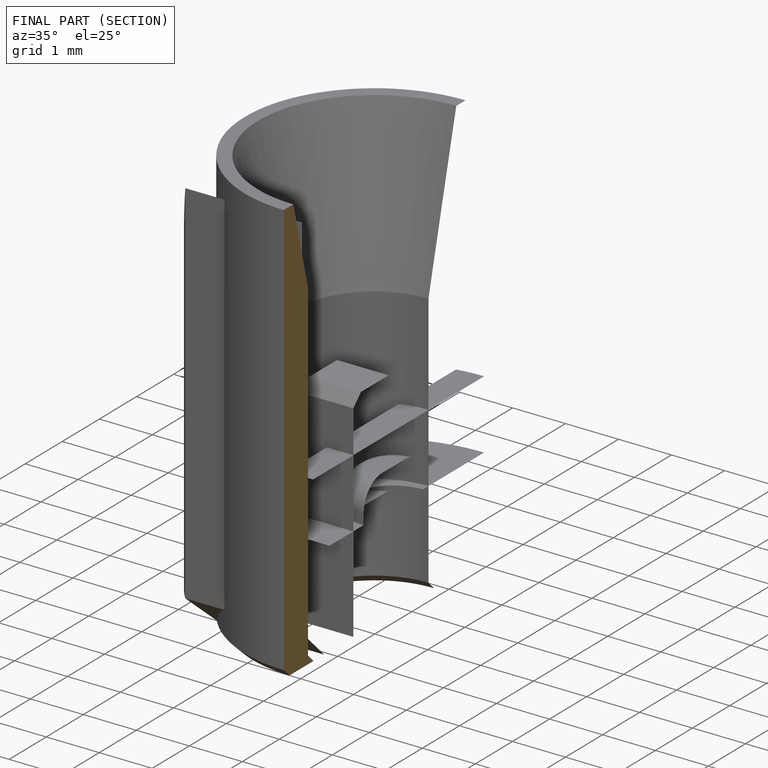
[diagram: finished part — half-section view (interior)]
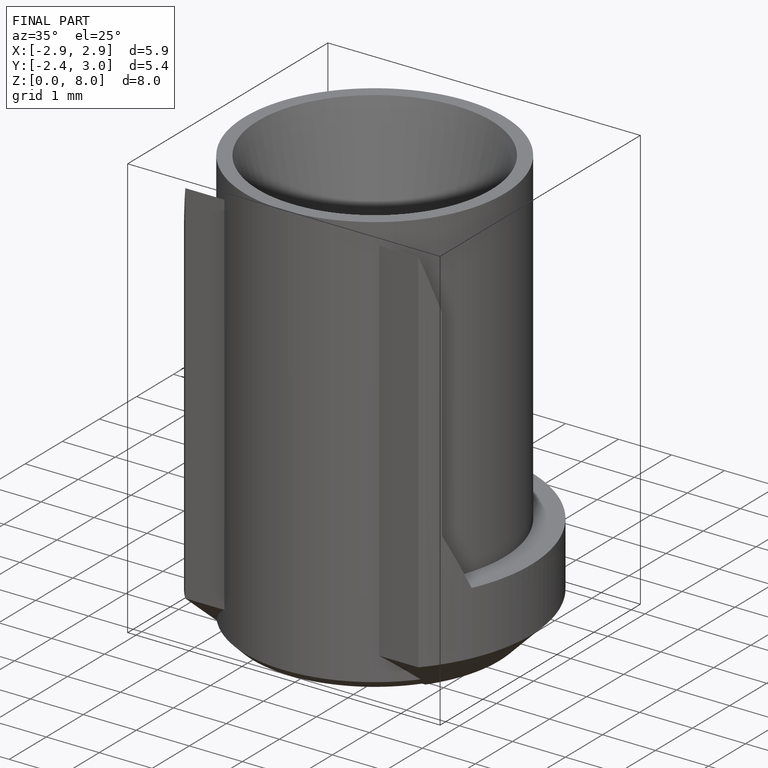
[diagram: finished part — iso view with bounding-box wireframe]
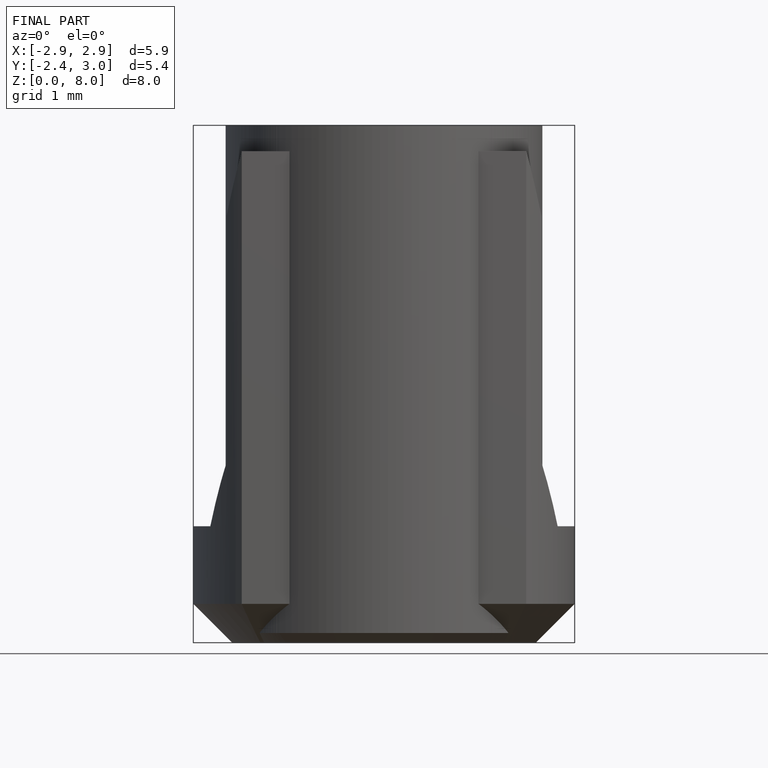
[diagram: finished part — front view with bounding-box wireframe]
